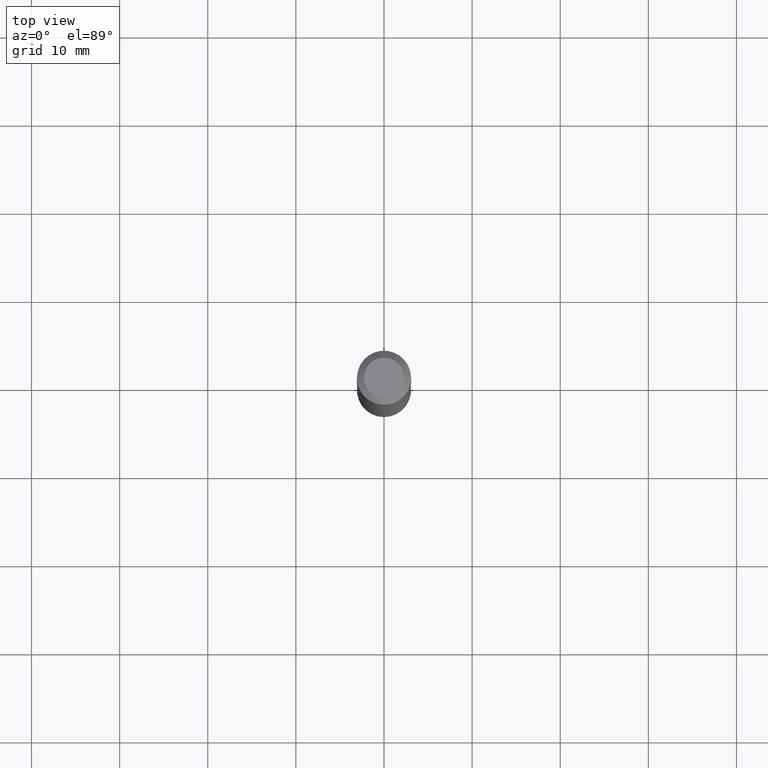
[diagram: clean part render]
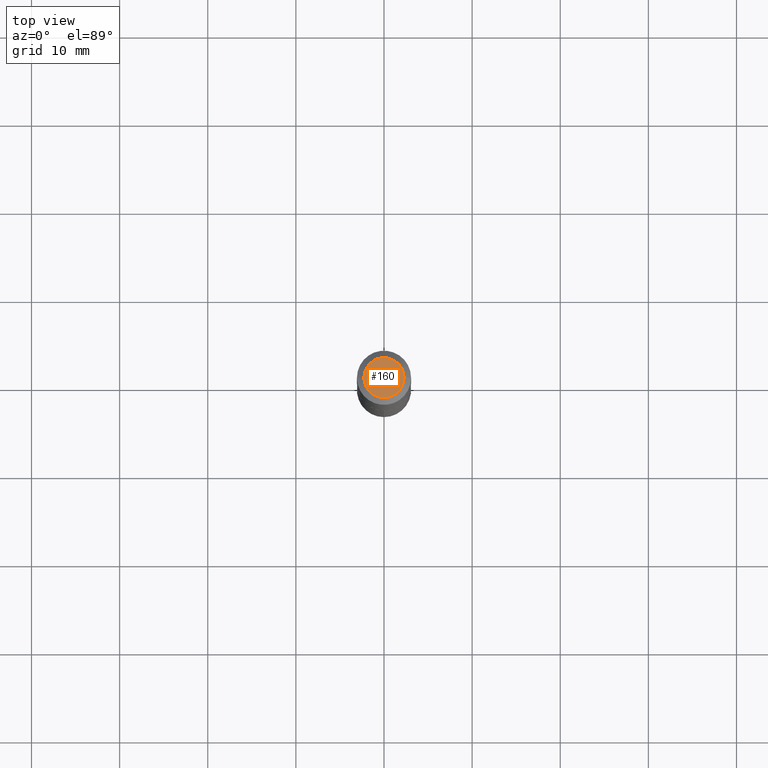
[diagram: same view with one face highlighted and labeled with its STEP entity id]
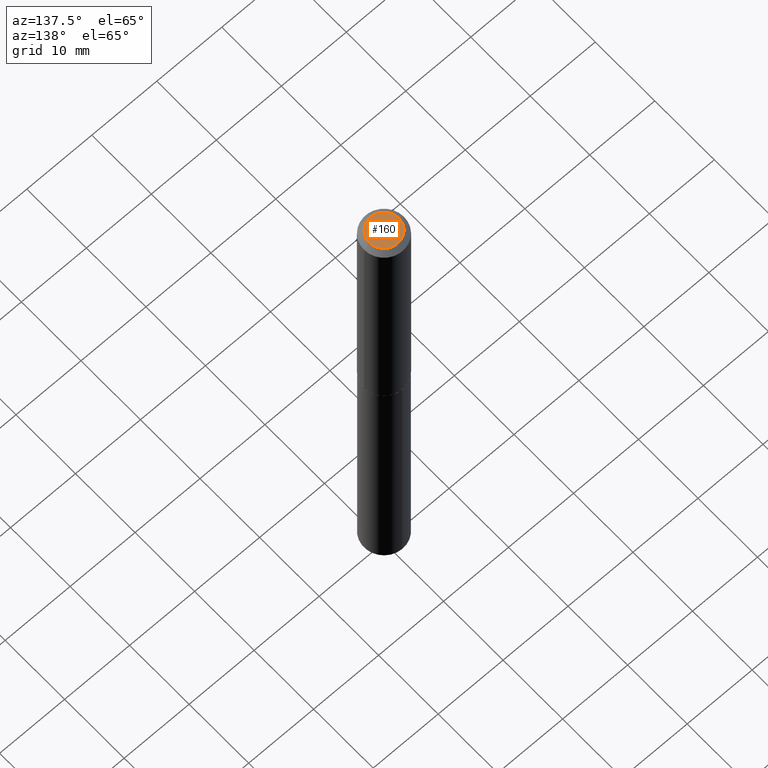
[diagram: same view with one face highlighted and labeled with its STEP entity id]
A machine part, top view. The second image highlights one B-rep face of the part: STEP entity #160.
A second angle (auxiliary view) of the same face is appended — the face is thin or edge-on in the first view.
In plain terms, the highlighted planar face has unit normal (0, -0, -1).
Its self-contained STEP definition (entity closure, byte-faithful):
#3 = FACE_OUTER_BOUND ( 'NONE', #156, .T. ) ;
#6 = CIRCLE ( 'NONE', #317, 0.08975000000000001033 ) ;
#57 = VERTEX_POINT ( 'NONE', #221 ) ;
#61 = DIRECTION ( 'NONE',  ( -2.445468806185136597E-29, 3.491481338843145583E-15, 1.000000000000000000 ) ) ;
#93 = CIRCLE ( 'NONE', #385, 0.08975000000000001033 ) ;
#104 = EDGE_CURVE ( 'NONE', #108, #57, #6, .T. ) ;
#108 = VERTEX_POINT ( 'NONE', #377 ) ;
#121 = DIRECTION ( 'NONE',  ( 1.000000000000000000, -6.982962677686267499E-15, 4.876187661634337776E-29 ) ) ;
#124 = CARTESIAN_POINT ( 'NONE',  ( -5.989671091818642381E-48, 8.551662891793931527E-34, 2.449293598294701954E-19 ) ) ;
#131 = CARTESIAN_POINT ( 'NONE',  ( -2.994835545909321190E-48, 4.275831445896965764E-34, 1.224646799147350977E-19 ) ) ;
#152 = ORIENTED_EDGE ( 'NONE', *, *, #159, .T. ) ;
#156 = EDGE_LOOP ( 'NONE', ( #201, #152 ) ) ;
#159 = EDGE_CURVE ( 'NONE', #57, #108, #93, .T. ) ;
#160 = ADVANCED_FACE ( 'NONE', ( #3 ), #280, .F. ) ;
#166 = DIRECTION ( 'NONE',  ( -2.445468806185136597E-29, 3.491481338843145583E-15, 1.000000000000000000 ) ) ;
#201 = ORIENTED_EDGE ( 'NONE', *, *, #104, .T. ) ;
#221 = CARTESIAN_POINT ( 'NONE',  ( 0.08975000000000001033, -7.774793724345997613E-16, 2.449293598343795834E-19 ) ) ;
#245 = DIRECTION ( 'NONE',  ( 2.438088387897960049E-29, -3.491481338843145188E-15, -1.000000000000000000 ) ) ;
#248 = DIRECTION ( 'NONE',  ( -1.000000000000000000, 6.982962677686265922E-15, -4.876176775795935793E-29 ) ) ;
#250 = DIRECTION ( 'NONE',  ( 1.000000000000000000, -6.982962677686267499E-15, 4.876187661634337776E-29 ) ) ;
#280 = PLANE ( 'NONE',  #352 ) ;
#317 = AXIS2_PLACEMENT_3D ( 'NONE', #124, #61, #121 ) ;
#323 = CARTESIAN_POINT ( 'NONE',  ( -5.989671091818642381E-48, 8.551662891793931527E-34, 2.449293598294701954E-19 ) ) ;
#352 = AXIS2_PLACEMENT_3D ( 'NONE', #131, #245, #248 ) ;
#377 = CARTESIAN_POINT ( 'NONE',  ( -0.08975000000000001033, 6.812752962417660252E-16, 2.449293598248967377E-19 ) ) ;
#385 = AXIS2_PLACEMENT_3D ( 'NONE', #323, #166, #250 ) ;